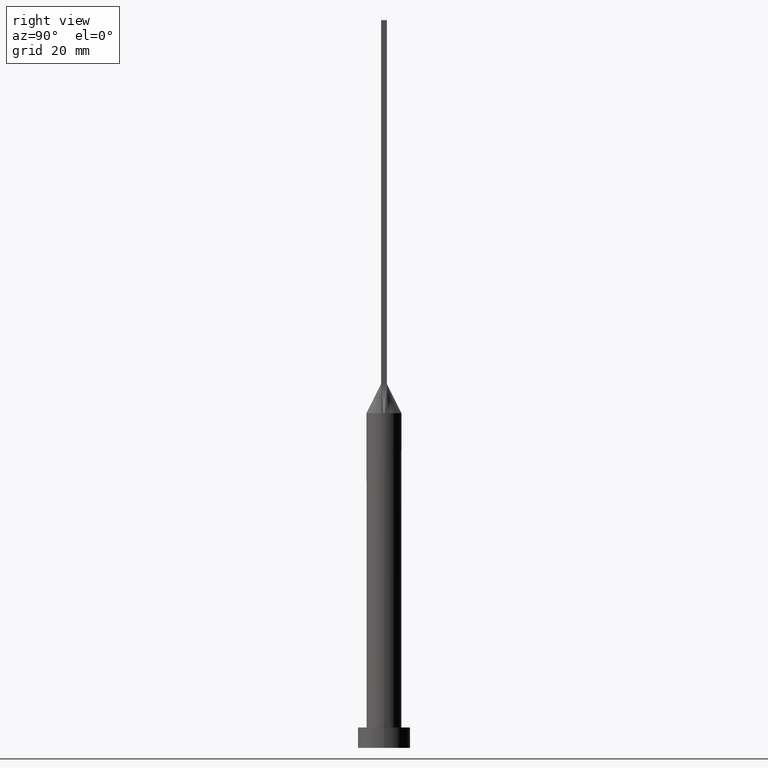
[diagram: clean part render]
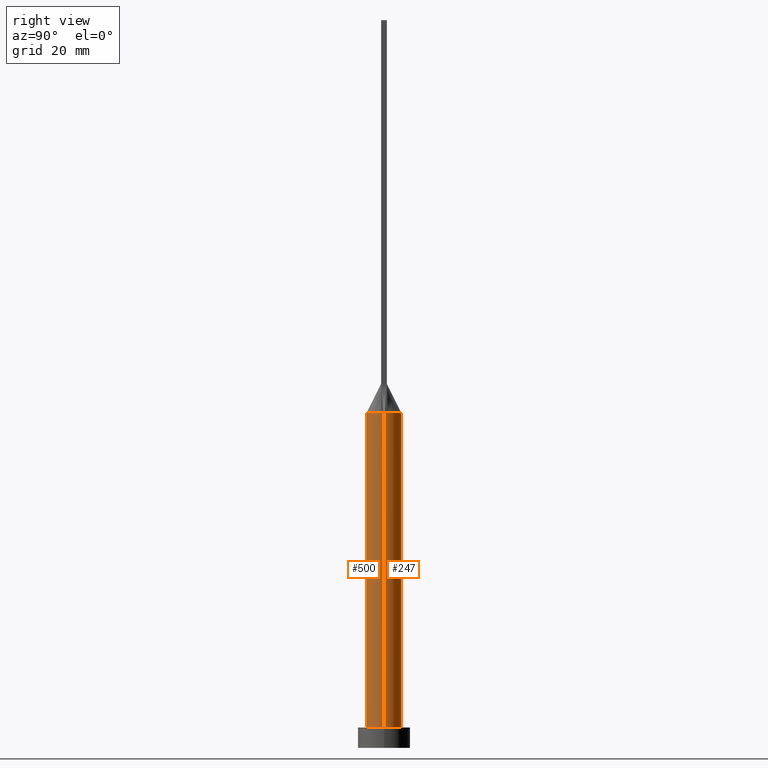
[diagram: same view with one multi-face feature highlighted, each face labeled with its STEP entity id]
A machine part, right view. The highlighted faces form ONE feature: a constant-radius fillet chain: 2 tangent blend faces with common blend radius 6 mm. The faces share edges in the B-rep.
Their STEP definitions:
[1] entity #247 (Cylinder):
#5 = CARTESIAN_POINT ( 'NONE',  ( -3.129188161608685181, 5.133661927581553819, 114.9999999999999858 ) ) ;
#8 = CARTESIAN_POINT ( 'NONE',  ( 3.755743307515265084, 4.694751915224760097, 114.9999999999999858 ) ) ;
#11 = VERTEX_POINT ( 'NONE', #142 ) ;
#14 = ORIENTED_EDGE ( 'NONE', *, *, #385, .F. ) ;
#17 = CARTESIAN_POINT ( 'NONE',  ( -3.755743307515264195, 4.694751915224762762, 114.9999999999999858 ) ) ;
#24 = CARTESIAN_POINT ( 'NONE',  ( 0.000000000000000000, 0.000000000000000000, 115.0000000000000000 ) ) ;
#26 = CARTESIAN_POINT ( 'NONE',  ( 6.000000000000000888, 7.347880794884120722E-16, 115.0000000000000000 ) ) ;
#28 = EDGE_CURVE ( 'NONE', #480, #150, #187, .T. ) ;
#50 = B_SPLINE_CURVE_WITH_KNOTS ( 'NONE', 3,
 ( #375, #147, #332, #345, #519, #289, #8, #476, #386, #298, #64, #54, #196, #521, #239, #578, #441, #430, #5, #17, #338, #380, #523, #293, #53, #60 ),
 .UNSPECIFIED., .F., .F.,
 ( 4, 2, 2, 2, 2, 2, 2, 2, 2, 2, 2, 2, 4 ),
 ( 0.000000000000000000, 0.1250000000000000000, 0.2500000000000000000, 0.3125000000000000000, 0.3750000000000000000, 0.4375000000000000000, 0.5000000000000000000, 0.5625000000000000000, 0.6250000000000000000, 0.6875000000000000000, 0.7500000000000000000, 0.8750000000000000000, 1.000000000000000000 ),
 .UNSPECIFIED. ) ;
#51 = VERTEX_POINT ( 'NONE', #324 ) ;
#53 = CARTESIAN_POINT ( 'NONE',  ( -5.826866859193279069, 1.513368149424918263, 115.0000000000000000 ) ) ;
#54 = CARTESIAN_POINT ( 'NONE',  ( 0.8409966403356972098, 5.955311887059998810, 115.0000000000000000 ) ) ;
#60 = CARTESIAN_POINT ( 'NONE',  ( -5.911281259919041631, 1.028048927730119244, 115.0000000000000000 ) ) ;
#64 = CARTESIAN_POINT ( 'NONE',  ( 1.654707822076785684, 5.782296865845954592, 114.9999999999999858 ) ) ;
#77 = DIRECTION ( 'NONE',  ( 0.000000000000000000, 0.000000000000000000, 1.000000000000000000 ) ) ;
#104 = DIRECTION ( 'NONE',  ( -0.000000000000000000, -0.000000000000000000, -1.000000000000000000 ) ) ;
#122 = DIRECTION ( 'NONE',  ( 1.000000000000000000, 0.000000000000000000, 0.000000000000000000 ) ) ;
#128 = DIRECTION ( 'NONE',  ( 0.000000000000000000, 0.000000000000000000, 1.000000000000000000 ) ) ;
#131 = EDGE_CURVE ( 'NONE', #570, #150, #377, .T. ) ;
#137 = DIRECTION ( 'NONE',  ( -0.000000000000000000, -0.000000000000000000, -1.000000000000000000 ) ) ;
#142 = CARTESIAN_POINT ( 'NONE',  ( 5.999671961706731338, 1.511234776062676333E-15, 115.0000000000000000 ) ) ;
#147 = CARTESIAN_POINT ( 'NONE',  ( 5.826866859193277293, 1.513368149424917153, 115.0000000000000142 ) ) ;
#150 = VERTEX_POINT ( 'NONE', #193 ) ;
#155 = DIRECTION ( 'NONE',  ( -1.000000000000000000, 0.000000000000000000, 0.000000000000000000 ) ) ;
#174 = CIRCLE ( 'NONE', #268, 6.000000000000000888 ) ;
#187 = LINE ( 'NONE', #367, #491 ) ;
#193 = CARTESIAN_POINT ( 'NONE',  ( -6.000000000000000888, 0.000000000000000000, 7.000000000000000000 ) ) ;
#196 = CARTESIAN_POINT ( 'NONE',  ( 0.4205485882577719159, 6.000000000000000000, 115.0000000000000142 ) ) ;
#236 = AXIS2_PLACEMENT_3D ( 'NONE', #594, #77, #402 ) ;
#239 = CARTESIAN_POINT ( 'NONE',  ( -0.8409966403356965436, 5.955311887059998810, 115.0000000000000142 ) ) ;
#247 = ADVANCED_FACE ( 'NONE', ( #484 ), #335, .T. ) ;
#252 = ORIENTED_EDGE ( 'NONE', *, *, #329, .F. ) ;
#257 = CARTESIAN_POINT ( 'NONE',  ( 6.000000000000000888, 7.347880794884120722E-16, 7.000000000000000000 ) ) ;
#265 = LINE ( 'NONE', #26, #418 ) ;
#266 = ORIENTED_EDGE ( 'NONE', *, *, #131, .T. ) ;
#267 = DIRECTION ( 'NONE',  ( 1.000000000000000000, 0.000000000000000000, 0.000000000000000000 ) ) ;
#268 = AXIS2_PLACEMENT_3D ( 'NONE', #24, #457, #267 ) ;
#289 = CARTESIAN_POINT ( 'NONE',  ( 4.038230363771782905, 4.452009983475585742, 115.0000000000000000 ) ) ;
#293 = CARTESIAN_POINT ( 'NONE',  ( -5.674157483178163375, 2.041064365575947726, 114.9999999999999716 ) ) ;
#298 = CARTESIAN_POINT ( 'NONE',  ( 2.047812955694715331, 5.654083712646525761, 114.9999999999999858 ) ) ;
#300 = EDGE_CURVE ( 'NONE', #51, #424, #50, .T. ) ;
#302 = CARTESIAN_POINT ( 'NONE',  ( -5.911281259919041631, 1.028048927730119244, 115.0000000000000000 ) ) ;
#324 = CARTESIAN_POINT ( 'NONE',  ( 5.911270528918048939, 1.028047048507483519, 115.0000000000000000 ) ) ;
#329 = EDGE_CURVE ( 'NONE', #424, #480, #174, .T. ) ;
#332 = CARTESIAN_POINT ( 'NONE',  ( 5.674157483178163375, 2.041064365575945061, 114.9999999999999858 ) ) ;
#334 = EDGE_LOOP ( 'NONE', ( #14, #348, #266, #407, #252, #564 ) ) ;
#335 = CYLINDRICAL_SURFACE ( 'NONE', #344, 6.000000000000000888 ) ;
#338 = CARTESIAN_POINT ( 'NONE',  ( -4.038230363771780240, 4.452009983475584853, 114.9999999999999716 ) ) ;
#344 = AXIS2_PLACEMENT_3D ( 'NONE', #572, #104, #155 ) ;
#345 = CARTESIAN_POINT ( 'NONE',  ( 5.155904004142093378, 3.127085030567957169, 114.9999999999999432 ) ) ;
#348 = ORIENTED_EDGE ( 'NONE', *, *, #456, .T. ) ;
#367 = CARTESIAN_POINT ( 'NONE',  ( -6.000000000000000888, 0.000000000000000000, 115.0000000000000000 ) ) ;
#375 = CARTESIAN_POINT ( 'NONE',  ( 5.911270528918048939, 1.028047048507483519, 115.0000000000000000 ) ) ;
#377 = CIRCLE ( 'NONE', #462, 6.000000000000000888 ) ;
#380 = CARTESIAN_POINT ( 'NONE',  ( -4.788055724916949529, 3.685825800347683590, 115.0000000000000000 ) ) ;
#385 = EDGE_CURVE ( 'NONE', #11, #51, #447, .T. ) ;
#386 = CARTESIAN_POINT ( 'NONE',  ( 2.785082292717041330, 5.329682650394847343, 114.9999999999999858 ) ) ;
#402 = DIRECTION ( 'NONE',  ( 1.000000000000000000, 0.000000000000000000, 0.000000000000000000 ) ) ;
#407 = ORIENTED_EDGE ( 'NONE', *, *, #28, .F. ) ;
#418 = VECTOR ( 'NONE', #492, 1000.000000000000000 ) ;
#424 = VERTEX_POINT ( 'NONE', #302 ) ;
#430 = CARTESIAN_POINT ( 'NONE',  ( -2.785082292717042218, 5.329682650394847343, 114.9999999999999716 ) ) ;
#441 = CARTESIAN_POINT ( 'NONE',  ( -2.047812955694715775, 5.654083712646525761, 114.9999999999999858 ) ) ;
#447 = CIRCLE ( 'NONE', #236, 6.000000000000000888 ) ;
#448 = CARTESIAN_POINT ( 'NONE',  ( -5.999671961706731338, 1.720595681592925272E-14, 115.0000000000000000 ) ) ;
#453 = CARTESIAN_POINT ( 'NONE',  ( 0.000000000000000000, 0.000000000000000000, 7.000000000000000000 ) ) ;
#456 = EDGE_CURVE ( 'NONE', #11, #570, #265, .T. ) ;
#457 = DIRECTION ( 'NONE',  ( 0.000000000000000000, 0.000000000000000000, 1.000000000000000000 ) ) ;
#462 = AXIS2_PLACEMENT_3D ( 'NONE', #453, #128, #122 ) ;
#476 = CARTESIAN_POINT ( 'NONE',  ( 3.129188161608685181, 5.133661927581551154, 114.9999999999999858 ) ) ;
#480 = VERTEX_POINT ( 'NONE', #448 ) ;
#484 = FACE_OUTER_BOUND ( 'NONE', #334, .T. ) ;
#491 = VECTOR ( 'NONE', #137, 1000.000000000000000 ) ;
#492 = DIRECTION ( 'NONE',  ( -0.000000000000000000, -0.000000000000000000, -1.000000000000000000 ) ) ;
#519 = CARTESIAN_POINT ( 'NONE',  ( 4.788055724916948641, 3.685825800347680925, 114.9999999999999716 ) ) ;
#521 = CARTESIAN_POINT ( 'NONE',  ( -0.4205485882577720824, 6.000000000000000888, 114.9999999999999858 ) ) ;
#523 = CARTESIAN_POINT ( 'NONE',  ( -5.155904004142094266, 3.127085030567958501, 114.9999999999999716 ) ) ;
#564 = ORIENTED_EDGE ( 'NONE', *, *, #300, .F. ) ;
#570 = VERTEX_POINT ( 'NONE', #257 ) ;
#572 = CARTESIAN_POINT ( 'NONE',  ( 0.000000000000000000, 0.000000000000000000, 115.0000000000000000 ) ) ;
#578 = CARTESIAN_POINT ( 'NONE',  ( -1.654707822076785906, 5.782296865845955480, 115.0000000000000000 ) ) ;
#594 = CARTESIAN_POINT ( 'NONE',  ( 0.000000000000000000, 0.000000000000000000, 115.0000000000000000 ) ) ;
[2] entity #500 (Cylinder):
#3 = ORIENTED_EDGE ( 'NONE', *, *, #456, .F. ) ;
#11 = VERTEX_POINT ( 'NONE', #142 ) ;
#26 = CARTESIAN_POINT ( 'NONE',  ( 6.000000000000000888, 7.347880794884120722E-16, 115.0000000000000000 ) ) ;
#28 = EDGE_CURVE ( 'NONE', #480, #150, #187, .T. ) ;
#31 = AXIS2_PLACEMENT_3D ( 'NONE', #313, #167, #355 ) ;
#44 = EDGE_CURVE ( 'NONE', #277, #11, #526, .T. ) ;
#47 = ORIENTED_EDGE ( 'NONE', *, *, #48, .F. ) ;
#48 = EDGE_CURVE ( 'NONE', #342, #277, #148, .T. ) ;
#82 = ORIENTED_EDGE ( 'NONE', *, *, #435, .F. ) ;
#93 = ORIENTED_EDGE ( 'NONE', *, *, #610, .T. ) ;
#119 = DIRECTION ( 'NONE',  ( 0.000000000000000000, 0.000000000000000000, 1.000000000000000000 ) ) ;
#137 = DIRECTION ( 'NONE',  ( -0.000000000000000000, -0.000000000000000000, -1.000000000000000000 ) ) ;
#139 = DIRECTION ( 'NONE',  ( 1.000000000000000000, 0.000000000000000000, 0.000000000000000000 ) ) ;
#142 = CARTESIAN_POINT ( 'NONE',  ( 5.999671961706731338, 1.511234776062676333E-15, 115.0000000000000000 ) ) ;
#148 = CIRCLE ( 'NONE', #516, 6.000000000000000888 ) ;
#150 = VERTEX_POINT ( 'NONE', #193 ) ;
#152 = ORIENTED_EDGE ( 'NONE', *, *, #44, .F. ) ;
#159 = ORIENTED_EDGE ( 'NONE', *, *, #28, .T. ) ;
#162 = CARTESIAN_POINT ( 'NONE',  ( 5.911281968884419591, -1.028049053400068802, 115.0000000000000000 ) ) ;
#167 = DIRECTION ( 'NONE',  ( 0.000000000000000000, 0.000000000000000000, 1.000000000000000000 ) ) ;
#182 = DIRECTION ( 'NONE',  ( 0.000000000000000000, 0.000000000000000000, 1.000000000000000000 ) ) ;
#187 = LINE ( 'NONE', #367, #491 ) ;
#190 = CYLINDRICAL_SURFACE ( 'NONE', #520, 6.000000000000000888 ) ;
#193 = CARTESIAN_POINT ( 'NONE',  ( -6.000000000000000888, 0.000000000000000000, 7.000000000000000000 ) ) ;
#256 = AXIS2_PLACEMENT_3D ( 'NONE', #384, #296, #439 ) ;
#257 = CARTESIAN_POINT ( 'NONE',  ( 6.000000000000000888, 7.347880794884120722E-16, 7.000000000000000000 ) ) ;
#265 = LINE ( 'NONE', #26, #418 ) ;
#277 = VERTEX_POINT ( 'NONE', #162 ) ;
#281 = DIRECTION ( 'NONE',  ( -0.000000000000000000, -0.000000000000000000, -1.000000000000000000 ) ) ;
#296 = DIRECTION ( 'NONE',  ( 0.000000000000000000, 0.000000000000000000, 1.000000000000000000 ) ) ;
#307 = DIRECTION ( 'NONE',  ( 1.000000000000000000, 0.000000000000000000, 0.000000000000000000 ) ) ;
#313 = CARTESIAN_POINT ( 'NONE',  ( 0.000000000000000000, 0.000000000000000000, 115.0000000000000000 ) ) ;
#317 = CIRCLE ( 'NONE', #31, 6.000000000000000888 ) ;
#342 = VERTEX_POINT ( 'NONE', #501 ) ;
#355 = DIRECTION ( 'NONE',  ( 1.000000000000000000, 0.000000000000000000, 0.000000000000000000 ) ) ;
#356 = AXIS2_PLACEMENT_3D ( 'NONE', #593, #119, #307 ) ;
#367 = CARTESIAN_POINT ( 'NONE',  ( -6.000000000000000888, 0.000000000000000000, 115.0000000000000000 ) ) ;
#369 = DIRECTION ( 'NONE',  ( -1.000000000000000000, 0.000000000000000000, 0.000000000000000000 ) ) ;
#374 = EDGE_LOOP ( 'NONE', ( #3, #152, #47, #82, #159, #93 ) ) ;
#384 = CARTESIAN_POINT ( 'NONE',  ( 0.000000000000000000, 0.000000000000000000, 115.0000000000000000 ) ) ;
#418 = VECTOR ( 'NONE', #492, 1000.000000000000000 ) ;
#425 = CARTESIAN_POINT ( 'NONE',  ( 0.000000000000000000, 0.000000000000000000, 115.0000000000000000 ) ) ;
#435 = EDGE_CURVE ( 'NONE', #480, #342, #317, .T. ) ;
#439 = DIRECTION ( 'NONE',  ( 1.000000000000000000, -1.332267629550187849E-14, 0.000000000000000000 ) ) ;
#448 = CARTESIAN_POINT ( 'NONE',  ( -5.999671961706731338, 1.720595681592925272E-14, 115.0000000000000000 ) ) ;
#456 = EDGE_CURVE ( 'NONE', #11, #570, #265, .T. ) ;
#472 = FACE_OUTER_BOUND ( 'NONE', #374, .T. ) ;
#480 = VERTEX_POINT ( 'NONE', #448 ) ;
#491 = VECTOR ( 'NONE', #137, 1000.000000000000000 ) ;
#492 = DIRECTION ( 'NONE',  ( -0.000000000000000000, -0.000000000000000000, -1.000000000000000000 ) ) ;
#500 = ADVANCED_FACE ( 'NONE', ( #472 ), #190, .T. ) ;
#501 = CARTESIAN_POINT ( 'NONE',  ( -5.911272568678778150, -1.028047416901946898, 115.0000000000000000 ) ) ;
#516 = AXIS2_PLACEMENT_3D ( 'NONE', #604, #182, #139 ) ;
#520 = AXIS2_PLACEMENT_3D ( 'NONE', #425, #281, #369 ) ;
#526 = CIRCLE ( 'NONE', #256, 6.000000000000000888 ) ;
#570 = VERTEX_POINT ( 'NONE', #257 ) ;
#593 = CARTESIAN_POINT ( 'NONE',  ( 0.000000000000000000, 0.000000000000000000, 7.000000000000000000 ) ) ;
#600 = CIRCLE ( 'NONE', #356, 6.000000000000000888 ) ;
#604 = CARTESIAN_POINT ( 'NONE',  ( 0.000000000000000000, 0.000000000000000000, 115.0000000000000000 ) ) ;
#610 = EDGE_CURVE ( 'NONE', #150, #570, #600, .T. ) ;